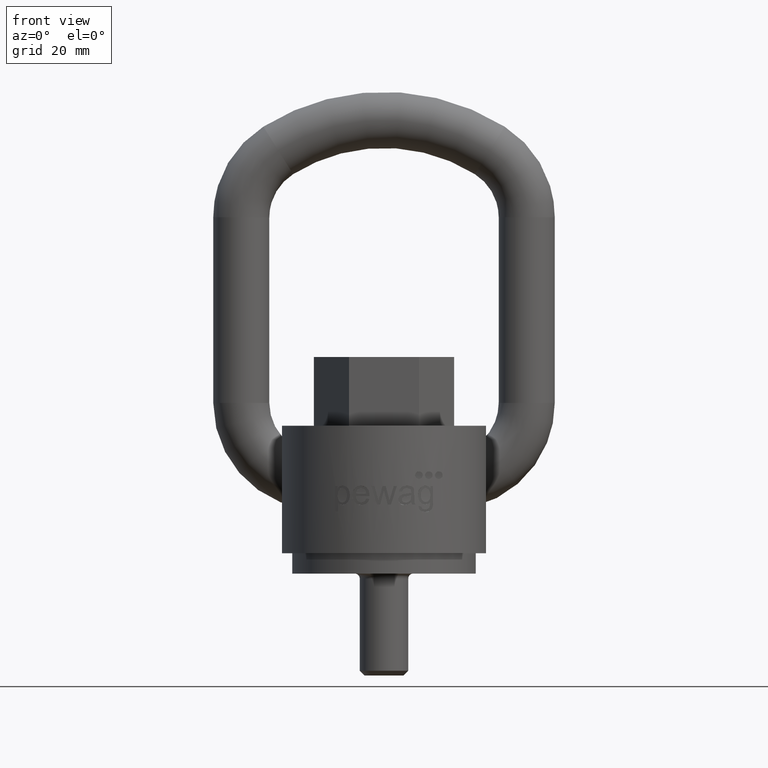
[diagram: clean part render]
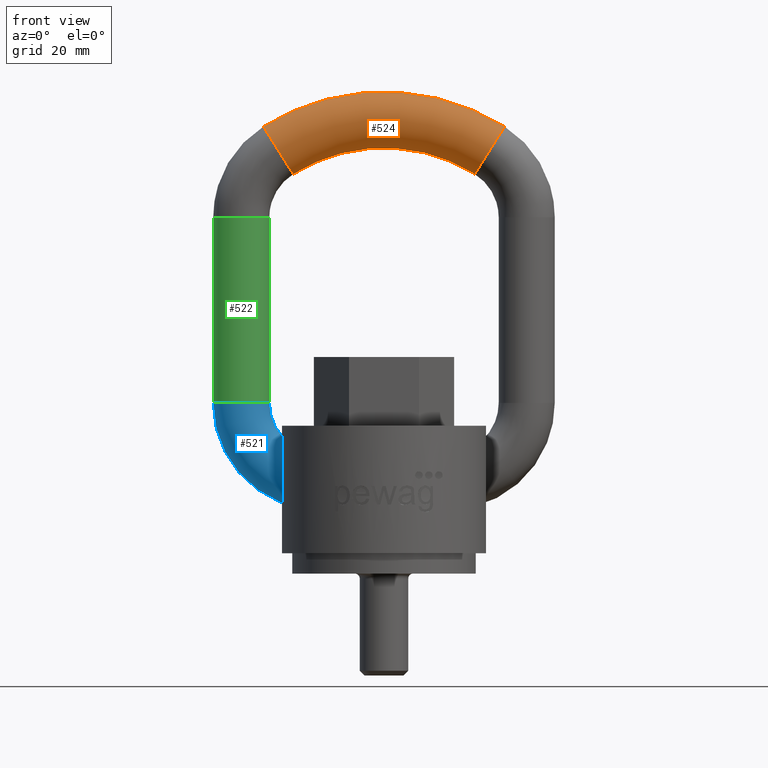
[diagram: same view with three faces highlighted in distinct colors, each labeled with its STEP entity id]
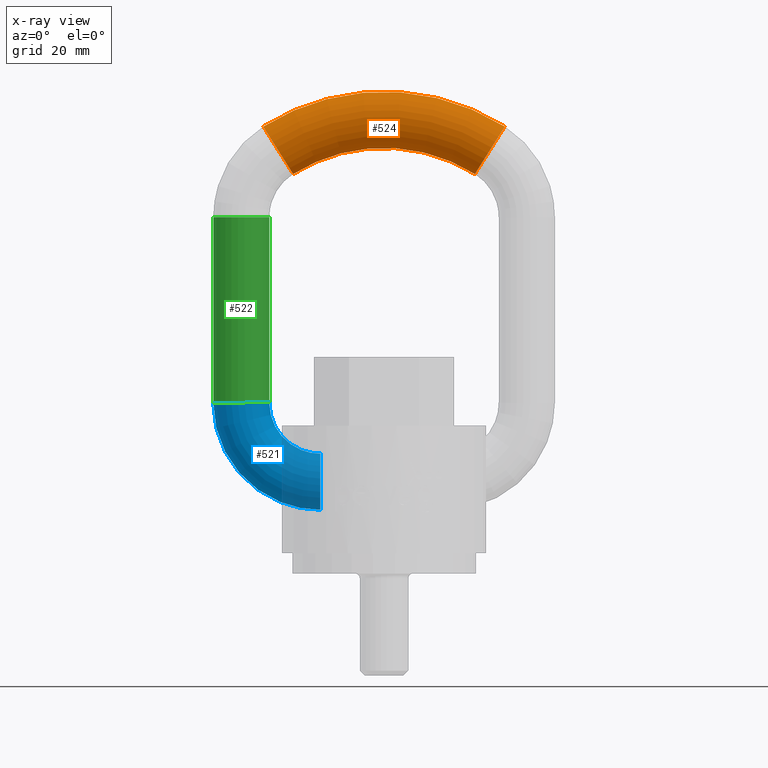
[diagram: x-ray of the same camera — body ghosted, the three highlighted faces saturated]
A machine part, front view with three faces highlighted in distinct colors.
The next image is the same camera in x-ray (body ghosted, the three faces saturated) — at least one of them is partly hidden behind the body in this view.
Their STEP definitions:

[orange] entity #524 — the highlighted toroidal blend (fillet) surface has major radius 39 mm and minor (blend) radius 5.5 mm.
#234=TOROIDAL_SURFACE('',#2538,39.,5.5);
#524=ADVANCED_FACE('',(#611,#612),#234,.T.);
#611=FACE_BOUND('',#773,.T.);
#612=FACE_BOUND('',#774,.T.);
#773=EDGE_LOOP('',(#1714));
#774=EDGE_LOOP('',(#1715));
#1109=CIRCLE('',#2535,5.5);
#1110=CIRCLE('',#2537,5.5);
#1714=ORIENTED_EDGE('',*,*,#2232,.T.);
#1715=ORIENTED_EDGE('',*,*,#2231,.F.);
#1927=VERTEX_POINT('',#5185);
#1928=VERTEX_POINT('',#5188);
#2231=EDGE_CURVE('',#1927,#1927,#1109,.T.);
#2232=EDGE_CURVE('',#1928,#1928,#1110,.T.);
#2535=AXIS2_PLACEMENT_3D('',#5184,#2967,#2968);
#2537=AXIS2_PLACEMENT_3D('',#5187,#2971,#2972);
#2538=AXIS2_PLACEMENT_3D('',#5189,#2973,#2974);
#2967=DIRECTION('',(-0.846797818814144,0.,-0.531914893617022));
#2968=DIRECTION('',(-0.531914893617021,0.,0.846797818814146));
#2971=DIRECTION('',(-0.846797818814145,0.,0.531914893617021));
#2972=DIRECTION('',(0.531914893617021,0.,0.846797818814146));
#2973=DIRECTION('',(0.,-1.,0.));
#2974=DIRECTION('',(0.,0.,-1.));
#5184=CARTESIAN_POINT('',(-20.7446808510639,19.,79.0251149337516));
#5185=CARTESIAN_POINT('',(-23.6702127659575,19.,83.6825029372294));
#5187=CARTESIAN_POINT('',(20.7446808510638,19.,79.0251149337516));
#5188=CARTESIAN_POINT('',(23.6702127659575,19.,83.6825029372294));
#5189=CARTESIAN_POINT('',(0.,19.,46.));

[blue] entity #521 — the highlighted toroidal blend (fillet) surface has major radius 15.5 mm and minor (blend) radius 5.5 mm.
#232=TOROIDAL_SURFACE('',#2532,15.5,5.5);
#521=ADVANCED_FACE('',(#605,#606),#232,.T.);
#605=FACE_BOUND('',#767,.T.);
#606=FACE_BOUND('',#768,.T.);
#767=EDGE_LOOP('',(#1708));
#768=EDGE_LOOP('',(#1709));
#1106=CIRCLE('',#2529,5.5);
#1107=CIRCLE('',#2531,5.5);
#1708=ORIENTED_EDGE('',*,*,#2229,.T.);
#1709=ORIENTED_EDGE('',*,*,#2228,.F.);
#1924=VERTEX_POINT('',#5176);
#1925=VERTEX_POINT('',#5179);
#2228=EDGE_CURVE('',#1924,#1924,#1106,.T.);
#2229=EDGE_CURVE('',#1925,#1925,#1107,.T.);
#2529=AXIS2_PLACEMENT_3D('',#5175,#2955,#2956);
#2531=AXIS2_PLACEMENT_3D('',#5178,#2959,#2960);
#2532=AXIS2_PLACEMENT_3D('',#5180,#2961,#2962);
#2955=DIRECTION('',(1.,0.,-1.72254642419883E-16));
#2956=DIRECTION('',(-3.1540426835942E-16,0.,-1.));
#2959=DIRECTION('',(3.33066907387547E-16,0.,-1.));
#2960=DIRECTION('',(-1.,0.,-6.30808536718839E-16));
#2961=DIRECTION('',(0.,-1.,0.));
#2962=DIRECTION('',(0.,0.,-1.));
#5175=CARTESIAN_POINT('',(-12.5,19.,14.));
#5176=CARTESIAN_POINT('',(-12.5,19.,8.5));
#5178=CARTESIAN_POINT('',(-28.,19.,29.5));
#5179=CARTESIAN_POINT('',(-33.5,19.,29.5));
#5180=CARTESIAN_POINT('',(-12.5,19.,29.5));

[green] entity #522 — the highlighted cylindrical surface (bore or boss wall) has radius 5.5 mm, axis along (-0, 0, -1).
#522=ADVANCED_FACE('',(#607,#608),#543,.T.);
#543=CYLINDRICAL_SURFACE('',#2534,5.5);
#607=FACE_BOUND('',#769,.T.);
#608=FACE_BOUND('',#770,.T.);
#769=EDGE_LOOP('',(#1710));
#770=EDGE_LOOP('',(#1711));
#1107=CIRCLE('',#2531,5.5);
#1108=CIRCLE('',#2533,5.5);
#1710=ORIENTED_EDGE('',*,*,#2230,.T.);
#1711=ORIENTED_EDGE('',*,*,#2229,.F.);
#1925=VERTEX_POINT('',#5179);
#1926=VERTEX_POINT('',#5182);
#2229=EDGE_CURVE('',#1925,#1925,#1107,.T.);
#2230=EDGE_CURVE('',#1926,#1926,#1108,.T.);
#2531=AXIS2_PLACEMENT_3D('',#5178,#2959,#2960);
#2533=AXIS2_PLACEMENT_3D('',#5181,#2963,#2964);
#2534=AXIS2_PLACEMENT_3D('',#5183,#2965,#2966);
#2959=DIRECTION('',(3.33066907387547E-16,0.,-1.));
#2960=DIRECTION('',(-1.,0.,-6.30808536718839E-16));
#2963=DIRECTION('',(3.33066907387547E-16,0.,-1.));
#2964=DIRECTION('',(-1.,0.,0.));
#2965=DIRECTION('',(-9.76026978639077E-17,0.,-1.));
#2966=DIRECTION('',(-1.,0.,0.));
#5178=CARTESIAN_POINT('',(-28.,19.,29.5));
#5179=CARTESIAN_POINT('',(-33.5,19.,29.5));
#5181=CARTESIAN_POINT('',(-28.,19.,65.8997487421324));
#5182=CARTESIAN_POINT('',(-33.5,19.,65.8997487421324));
#5183=CARTESIAN_POINT('',(-28.,19.,65.8997487421324));